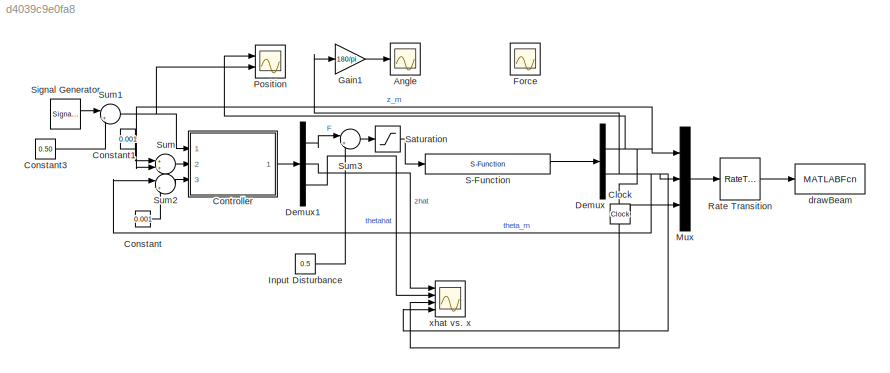
MODEL slx_d4039c9e0fa8
KIND model
CONFIG AbsTol = auto
CONFIG EnableMultiTasking = off
CONFIG FixedStep = auto
CONFIG InitFcn = ball_on_beam_param
CONFIG MaxStep = 1
CONFIG MinStep = auto
CONFIG RelTol = 1e-3
CONFIG SampleTimeConstraint = Unconstrained
CONFIG Solver = ode45
CONFIG SolverName = ode45
CONFIG StartTime = 0.0
CONFIG StopTime = 100
BLOCK [Scope] Angle
  Floating = off
  NumInputPorts = 1
  Ports = [1]
  ScopeSpecificationString = Simulink.scopes.TimeScopeBlockCfg('CurrentConfiguration', extmgr.ConfigurationSet(extmgr.Configuration('Core','General UI',true),extmgr.Configuration('Core','Source UI',true),extmgr.Configuration('Sources','WiredSimulink',true,'DataLoggingVariableName','ScopeData1'),extmgr.Configuration('Visuals','Time Domain',true,'SerializedDisplays',{struct('MinYLimReal','-9.21192','MaxYLimReal','8.40135','YLab...<+1415ch>
BLOCK [Clock] Clock
BLOCK [Constant] Constant
  Value = 0.001
BLOCK [Constant] Constant1
  Value = 0.001
BLOCK [Constant] Constant3
  Value = 0.50
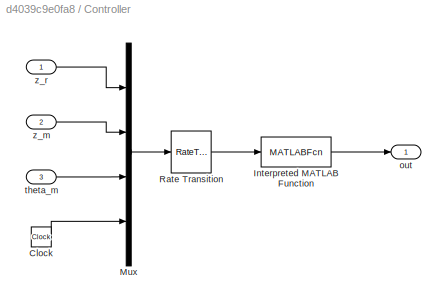
BLOCK [SubSystem] Controller
  Ports = [3, 1]
  RequestExecContextInheritance = off
BLOCK [Clock] Controller/Clock
BLOCK [MATLABFcn] Controller/Interpreted MATLAB Function
  MATLABFcn = ball_on_beam_ctrl(u,Par)
  Ports = [1, 1]
BLOCK [Mux] Controller/Mux
  DisplayOption = bar
  Ports = [4, 1]
BLOCK [RateTransition] Controller/Rate Transition
  OutPortSampleTime = Par.Ts
BLOCK [Outport] Controller/out
  IconDisplay = Port number
BLOCK [Inport] Controller/theta_m
  IconDisplay = Port number
  Port = 3
BLOCK [Inport] Controller/z_m
  IconDisplay = Port number
  Port = 2
BLOCK [Inport] Controller/z_r
  IconDisplay = Port number
BLOCK [Demux] Demux
  DisplayOption = bar
  Outputs = 2
  Ports = [1, 2]
BLOCK [Demux] Demux1
  DisplayOption = bar
  Outputs = 3
  Ports = [1, 3]
BLOCK [Scope] Force
  Floating = off
  NumInputPorts = 1
  Ports = [1]
  ScopeSpecificationString = Simulink.scopes.TimeScopeBlockCfg('CurrentConfiguration', extmgr.ConfigurationSet(extmgr.Configuration('Core','General UI',true),extmgr.Configuration('Core','Source UI',true),extmgr.Configuration('Sources','WiredSimulink',true,'DataLoggingVariableName','ScopeData1'),extmgr.Configuration('Visuals','Time Domain',true,'SerializedDisplays',{struct('MinYLimReal','10.3215','MaxYLimReal','18.17771','YLab...<+1419ch>
BLOCK [Gain] Gain1
  Gain = 180/pi
  OutDataTypeStr = Inherit: Inherit via internal rule
  ParamDataTypeStr = Inherit: Inherit via internal rule
  SaturateOnIntegerOverflow = off
BLOCK [Constant] Input Disturbance
  Value = 0.5
BLOCK [Mux] Mux
  DisplayOption = bar
  Inputs = 3
  Ports = [3, 1]
BLOCK [Scope] Position
  Floating = off
  NumInputPorts = 2
  Ports = [2]
  ScopeSpecificationString = Simulink.scopes.TimeScopeBlockCfg('CurrentConfiguration', extmgr.ConfigurationSet(extmgr.Configuration('Core','General UI',true),extmgr.Configuration('Core','Source UI',true),extmgr.Configuration('Sources','WiredSimulink',true),extmgr.Configuration('Visuals','Time Domain',true,'SerializedDisplays',{struct('MinYLimReal','-0.38565','MaxYLimReal','0.7685','YLabelReal','','MinYLimMag','0.00000','MaxYL...<+1376ch>
BLOCK [RateTransition] Rate Transition
  OutPortSampleTime = Par.t_plot
BLOCK [S-Function] S-Function
  EnableBusSupport = off
  FunctionName = ball_on_beam_dynamics
  Parameters = Par
  Ports = [1, 1]
  SFcnIsStateOwnerBlock = off
  SFunctionDeploymentMode = off
BLOCK [Saturate] Saturation
  InputPortMap = u0
  LowerLimit = -Par.F_max
  Ports = [1, 1]
  UpperLimit = Par.F_max
BLOCK [SignalGenerator] Signal Generator
  Amplitude = 0.15
  Frequency = 0.025
  Ports = [0, 1]
  WaveForm = square
BLOCK [Sum] Sum
  IconShape = round
  InputSameDT = off
  Inputs = ++|
  OutDataTypeStr = Inherit: Inherit via internal rule
  Ports = [2, 1]
  SaturateOnIntegerOverflow = off
BLOCK [Sum] Sum1
  IconShape = round
  InputSameDT = off
  Inputs = |++
  OutDataTypeStr = Inherit: Inherit via internal rule
  Ports = [2, 1]
  SaturateOnIntegerOverflow = off
BLOCK [Sum] Sum2
  IconShape = round
  InputSameDT = off
  Inputs = |++
  OutDataTypeStr = Inherit: Inherit via internal rule
  Ports = [2, 1]
  SaturateOnIntegerOverflow = off
BLOCK [Sum] Sum3
  IconShape = round
  InputSameDT = off
  Inputs = |++
  OutDataTypeStr = Inherit: Inherit via internal rule
  Ports = [2, 1]
  SaturateOnIntegerOverflow = off
BLOCK [MATLABFcn] drawBeam
  MATLABFcn = ball_on_beam_animation(u)
  OutputDimensions = 0
  Ports = [1]
BLOCK [Scope] xhat vs. x
  Floating = off
  NumInputPorts = 4
  Ports = [4]
  ScopeSpecificationString = Simulink.scopes.TimeScopeBlockCfg('CurrentConfiguration', extmgr.ConfigurationSet(extmgr.Configuration('Core','General UI',true),extmgr.Configuration('Core','Source UI',true),extmgr.Configuration('Sources','WiredSimulink',true,'DataLoggingVariableName','ScopeData1'),extmgr.Configuration('Visuals','Time Domain',true,'SerializedDisplays',{struct('MinYLimReal','-0.3897','MaxYLimReal','0.76895','YLabe...<+1485ch>
LINE Clock:1 -> Mux:3
LINE Constant1:1 -> Sum:1
LINE Constant3:1 -> Sum1:2
LINE Constant:1 -> Sum2:2
LINE Controller/Clock:1 -> Controller/Mux:4
LINE Controller/Interpreted MATLAB Function:1 -> Controller/out:1
LINE Controller/Mux:1 -> Controller/Rate Transition:1
LINE Controller/Rate Transition:1 -> Controller/Interpreted MATLAB Function:1
LINE Controller/theta_m:1 -> Controller/Mux:3
LINE Controller/z_m:1 -> Controller/Mux:2
LINE Controller/z_r:1 -> Controller/Mux:1
LINE Controller:1 -> Demux1:1
LINE Demux1:1 -> Sum3:1
LINE Demux1:2 -> xhat vs. x:1
LINE Demux1:3 -> xhat vs. x:2
NET Demux:1 -> Mux:1, Position:1, Sum:2, xhat vs. x:3
NET Demux:2 -> Gain1:1, Mux:2, Sum2:1, xhat vs. x:4
LINE Gain1:1 -> Angle:1
LINE Input Disturbance:1 -> Sum3:2
LINE Mux:1 -> Rate Transition:1
LINE Rate Transition:1 -> drawBeam:1
LINE S-Function:1 -> Demux:1
LINE Saturation:1 -> S-Function:1
LINE Signal Generator:1 -> Sum1:1
NET Sum1:1 -> Controller:1, Position:2
LINE Sum2:1 -> Controller:3
LINE Sum3:1 -> Saturation:1
LINE Sum:1 -> Controller:2
note: NET lines group one-source signal fan-out (src -> all destinations, sorted); 1:1 wires keep LINE
